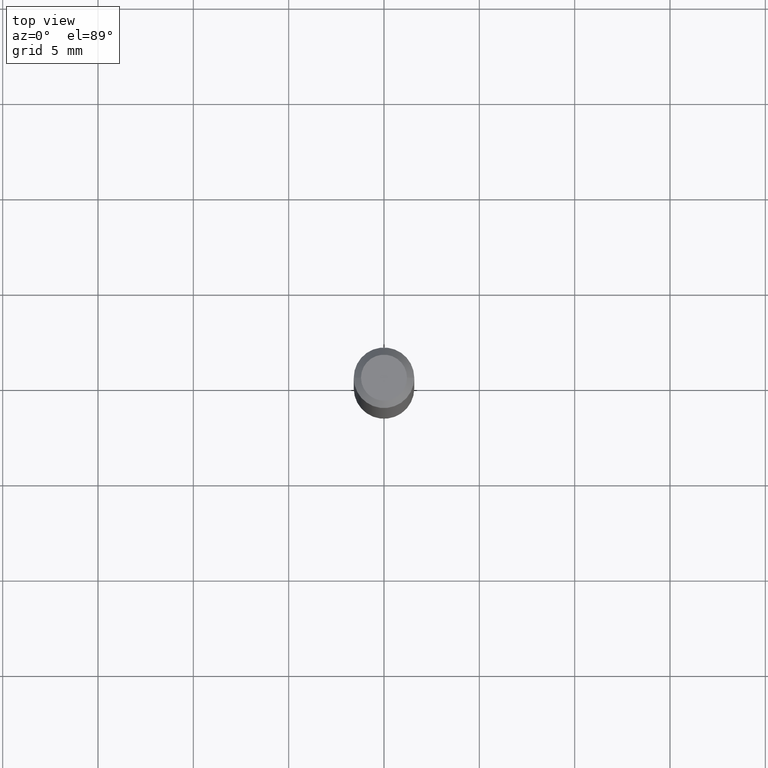
[diagram: clean part render]
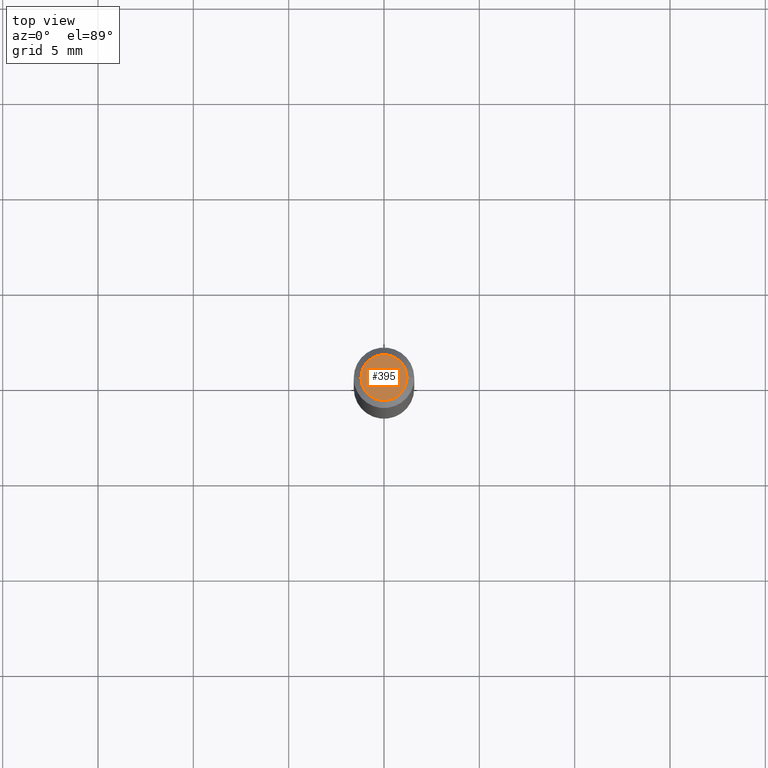
[diagram: same view with one face highlighted and labeled with its STEP entity id]
A machine part, top view. The second image highlights one B-rep face of the part: STEP entity #395.
In plain terms, the highlighted planar face has unit normal (0, -0, -1).
Its self-contained STEP definition (entity closure, byte-faithful):
#18 = CARTESIAN_POINT ( 'NONE',  ( -6.680649051745406845E-45, 9.538196290434862081E-31, 2.731847993664263218E-16 ) ) ;
#60 = PLANE ( 'NONE',  #471 ) ;
#62 = DIRECTION ( 'NONE',  ( 1.000000000000000000, -6.982962677686266711E-15, 4.852736867747365086E-29 ) ) ;
#64 = VERTEX_POINT ( 'NONE', #160 ) ;
#97 = DIRECTION ( 'NONE',  ( 1.000000000000000000, -6.982962677686266711E-15, 4.852736867747365086E-29 ) ) ;
#145 = AXIS2_PLACEMENT_3D ( 'NONE', #295, #289, #97 ) ;
#160 = CARTESIAN_POINT ( 'NONE',  ( 0.04750000000000000749, -4.035134999187568762E-16, 2.731847993664288856E-16 ) ) ;
#186 = EDGE_CURVE ( 'NONE', #474, #64, #367, .T. ) ;
#243 = EDGE_CURVE ( 'NONE', #64, #474, #404, .T. ) ;
#273 = CARTESIAN_POINT ( 'NONE',  ( -0.04750000000000000749, 3.578768372314221353E-16, 2.731847993664239060E-16 ) ) ;
#289 = DIRECTION ( 'NONE',  ( -2.445468806185136597E-29, 3.491481338843145583E-15, 1.000000000000000000 ) ) ;
#295 = CARTESIAN_POINT ( 'NONE',  ( -6.680649051745406845E-45, 9.538196290434862081E-31, 2.731847993664263218E-16 ) ) ;
#329 = AXIS2_PLACEMENT_3D ( 'NONE', #18, #500, #62 ) ;
#348 = CARTESIAN_POINT ( 'NONE',  ( 3.316907271900976589E-16, 0.04750000000000000749, -2.925296391183627249E-17 ) ) ;
#367 = CIRCLE ( 'NONE', #145, 0.04750000000000000749 ) ;
#368 = EDGE_LOOP ( 'NONE', ( #463, #507 ) ) ;
#395 = ADVANCED_FACE ( 'NONE', ( #418 ), #60, .F. ) ;
#404 = CIRCLE ( 'NONE', #329, 0.04750000000000000749 ) ;
#418 = FACE_OUTER_BOUND ( 'NONE', #368, .T. ) ;
#459 = DIRECTION ( 'NONE',  ( -1.000000000000000000, 6.982962677686265922E-15, -4.876176775795935793E-29 ) ) ;
#463 = ORIENTED_EDGE ( 'NONE', *, *, #186, .T. ) ;
#471 = AXIS2_PLACEMENT_3D ( 'NONE', #348, #506, #459 ) ;
#474 = VERTEX_POINT ( 'NONE', #273 ) ;
#500 = DIRECTION ( 'NONE',  ( -2.445468806185136597E-29, 3.491481338843145583E-15, 1.000000000000000000 ) ) ;
#506 = DIRECTION ( 'NONE',  ( 2.438088387897960049E-29, -3.491481338843145188E-15, -1.000000000000000000 ) ) ;
#507 = ORIENTED_EDGE ( 'NONE', *, *, #243, .T. ) ;